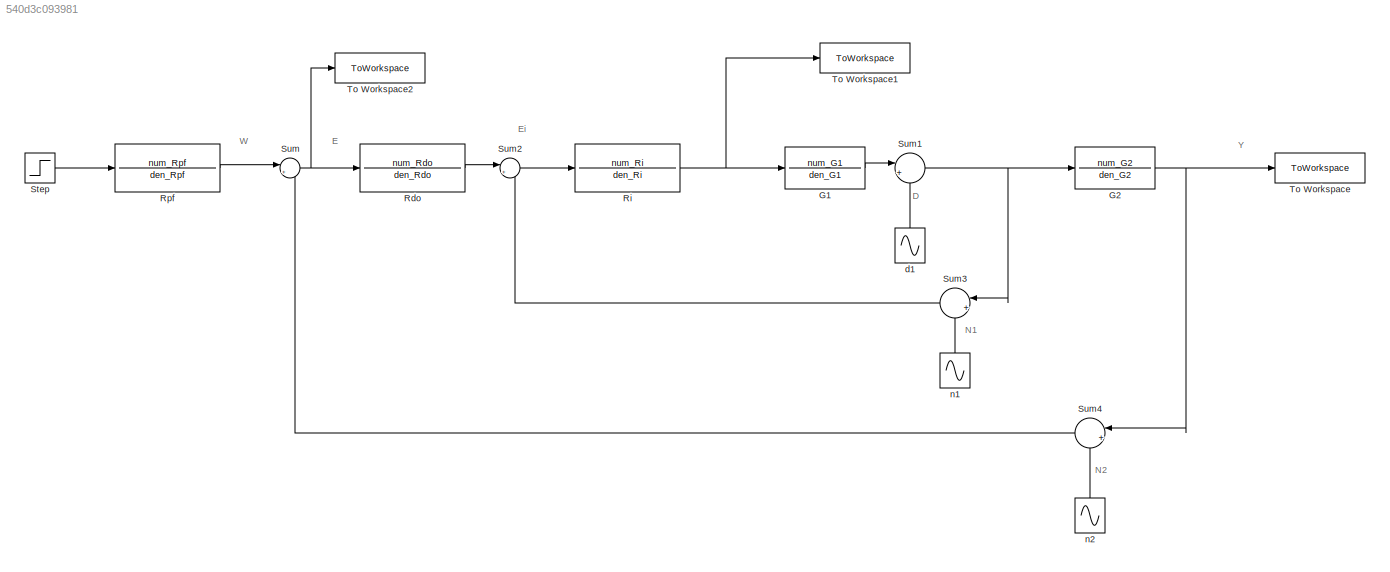
MODEL slx_540d3c093981
KIND model
CONFIG AbsTol = auto
CONFIG EnableMultiTasking = off
CONFIG FixedStep = auto
CONFIG MaxStep = auto
CONFIG MinStep = auto
CONFIG RelTol = 1e-3
CONFIG SampleTimeConstraint = Unconstrained
CONFIG Solver = VariableStepAuto
CONFIG SolverName = VariableStepAuto
CONFIG StartTime = 0.0
CONFIG StopTime = 10.0
BLOCK [TransferFcn] G1 
  Denominator = den_G1
  Numerator = num_G1
BLOCK [TransferFcn] G2
  Denominator = den_G2
  Numerator = num_G2
BLOCK [TransferFcn] Rdo
  Denominator = den_Rdo
  Numerator = num_Rdo
BLOCK [TransferFcn] Ri 
  Denominator = den_Ri
  Numerator = num_Ri
BLOCK [TransferFcn] Rpf 
  Denominator = den_Rpf
  Numerator = num_Rpf
BLOCK [Step] Step
  After = 1.5
  SampleTime = 0
  Time = 0
BLOCK [Sum] Sum
  IconShape = round
  InputSameDT = off
  Inputs = |+-
  OutDataTypeStr = Inherit: Inherit via internal rule
  Ports = [2, 1]
  SaturateOnIntegerOverflow = off
BLOCK [Sum] Sum1
  IconShape = round
  InputSameDT = off
  Inputs = |++
  OutDataTypeStr = Inherit: Inherit via internal rule
  Ports = [2, 1]
  SaturateOnIntegerOverflow = off
BLOCK [Sum] Sum2
  IconShape = round
  InputSameDT = off
  Inputs = |+-
  OutDataTypeStr = Inherit: Inherit via internal rule
  Ports = [2, 1]
  SaturateOnIntegerOverflow = off
BLOCK [Sum] Sum3
  IconShape = round
  InputSameDT = off
  Inputs = |++
  OutDataTypeStr = Inherit: Inherit via internal rule
  Ports = [2, 1]
  SaturateOnIntegerOverflow = off
BLOCK [Sum] Sum4
  IconShape = round
  InputSameDT = off
  Inputs = |++
  OutDataTypeStr = Inherit: Inherit via internal rule
  Ports = [2, 1]
  SaturateOnIntegerOverflow = off
BLOCK [ToWorkspace] To Workspace
  MaxDataPoints = inf
  Ports = [1]
  SampleTime = -1
  SaveFormat = Timeseries
  VariableName = y
BLOCK [ToWorkspace] To Workspace1
  MaxDataPoints = inf
  Ports = [1]
  SampleTime = -1
  SaveFormat = Timeseries
  VariableName = u
BLOCK [ToWorkspace] To Workspace2
  MaxDataPoints = inf
  Ports = [1]
  SampleTime = -1
  SaveFormat = Timeseries
  VariableName = e
BLOCK [Sin] d1
  Amplitude = 3
  Ports = [0, 1]
  SampleTime = 0
BLOCK [Sin] n1
  Amplitude = 0.02
  Frequency = 8000
  Ports = [0, 1]
  SampleTime = 0
BLOCK [Sin] n2
  Amplitude = 0.02
  Frequency = 8000
  Ports = [0, 1]
  SampleTime = 0
ANNOTATION (root): D
ANNOTATION (root): E
ANNOTATION (root): Ei
ANNOTATION (root): N1
ANNOTATION (root): N2
ANNOTATION (root): W
ANNOTATION (root): Y
LINE G1 :1 -> Sum1:1
NET G2:1 -> Sum4:1, To Workspace:1
LINE Rdo:1 -> Sum2:1
NET Ri :1 -> G1 :1, To Workspace1:1
LINE Rpf :1 -> Sum:1
LINE Step:1 -> Rpf :1
NET Sum1:1 -> G2:1, Sum3:1
LINE Sum2:1 -> Ri :1
LINE Sum3:1 -> Sum2:2
LINE Sum4:1 -> Sum:2
NET Sum:1 -> Rdo:1, To Workspace2:1
LINE d1:1 -> Sum1:2
LINE n1:1 -> Sum3:2
LINE n2:1 -> Sum4:2
note: NET lines group one-source signal fan-out (src -> all destinations, sorted); 1:1 wires keep LINE
